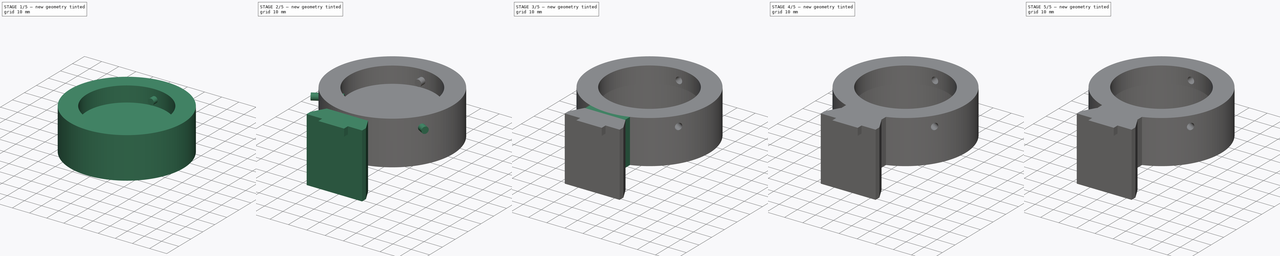
[diagram: build sequence overview — one tinted view per stage of 5, left to right]
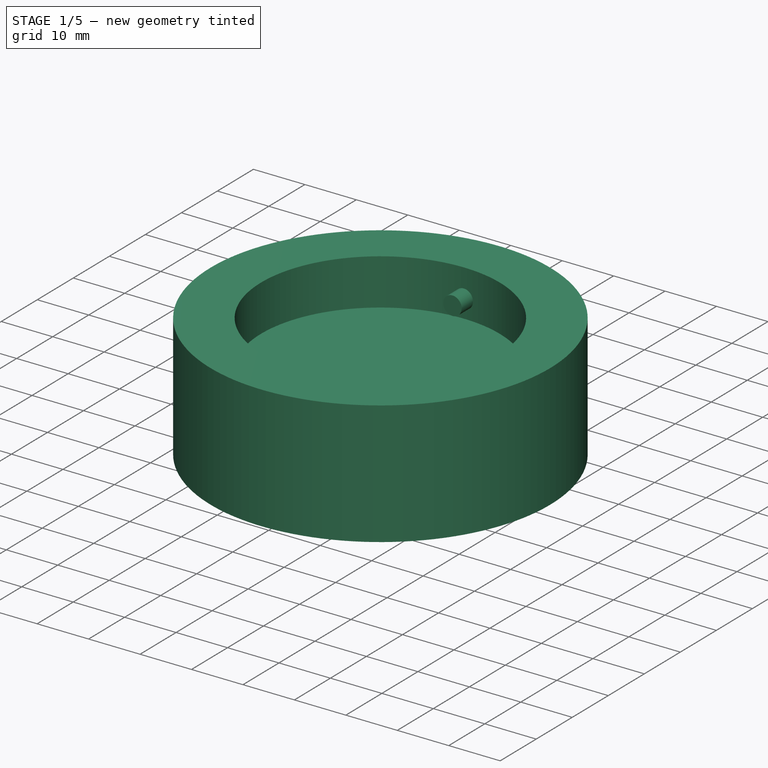
[diagram: stage 1 of 5 — iso view after this stage's code; geometry added in this stage tinted green]
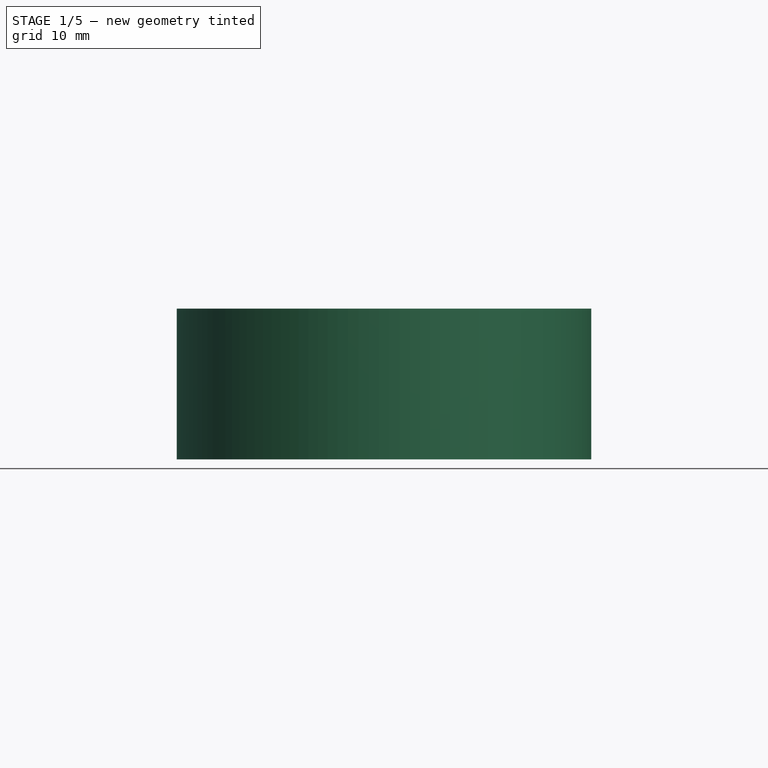
[diagram: stage 1 of 5 — front view after this stage's code; geometry added in this stage tinted green]
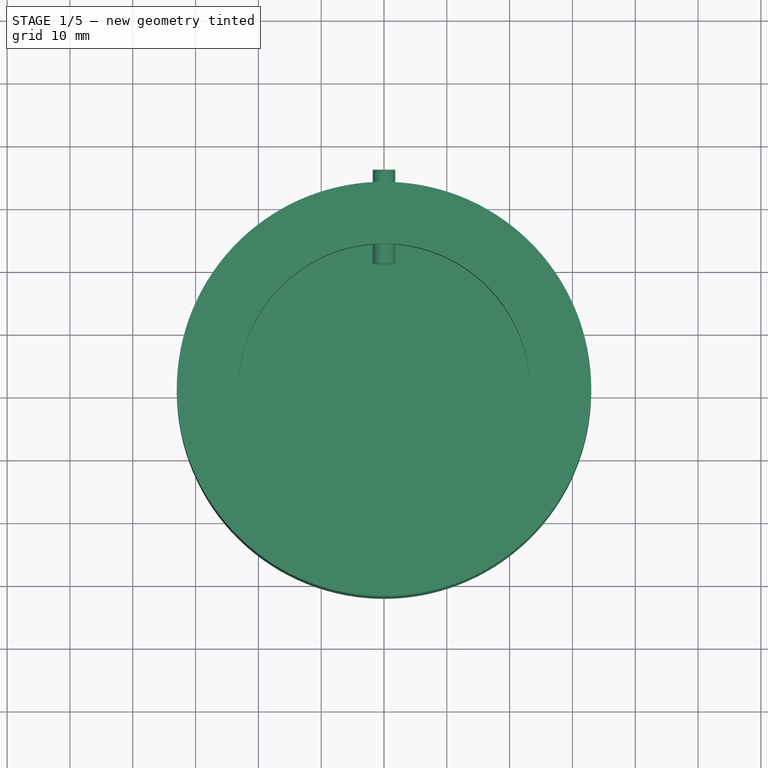
[diagram: stage 1 of 5 — top view after this stage's code; geometry added in this stage tinted green]
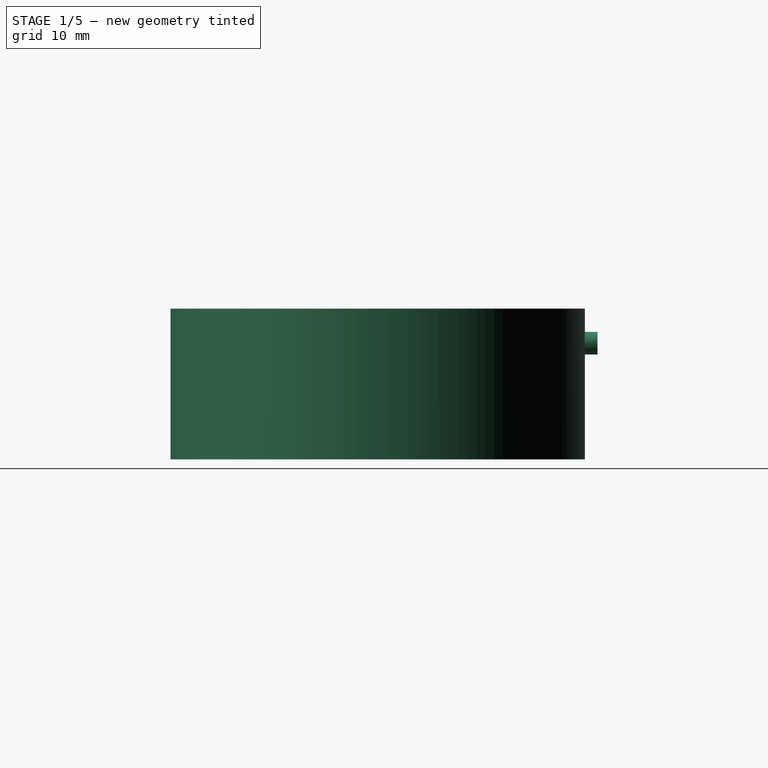
[diagram: stage 1 of 5 — right view after this stage's code; geometry added in this stage tinted green]
FCSTD DOCUMENT  (FreeCAD 0.20R29177 (Git))
Label: laser
License: All rights reserved
LicenseURL: http://en.wikipedia.org/wiki/All_rights_reserved
objects: Part::Cylinder×9, Part::Cut×5, Part::MultiFuse×4, Part::Box×2, Part::Fillet×2, Part::Refine×2, Sketcher::SketchObject×1, Part::Extrusion×1
note: 26 computed .brp shape members not serialized (recipe doc carries the construction recipe); baked Part::Feature solids carry a one-line shape summary decoded from their .brp

FEATURE [Part::Cylinder] Cylinder  label="Válec"
  Angle = 360
  AttacherType = Attacher::AttachEngine3D
  FirstAngle = 0
  Height = 42
  Radius = 23.2
  SecondAngle = 0
FEATURE [Part::Cylinder] Cylinder002  label="Válec002"
  Angle = 360
  AttacherType = Attacher::AttachEngine3D
  FirstAngle = 0
  Height = 24
  Radius = 33
  SecondAngle = 0
FEATURE [Part::Cylinder] Cylinder003  label="Válec003"
  Angle = 360
  AttacherType = Attacher::AttachEngine3D
  FirstAngle = 0
  Height = 15
  Placement = pos=(0,36,18.5) rot=(1,0,0;1.5708rad)
  Radius = 1.8
  SecondAngle = 0
FEATURE [Part::Cut] Cut
  Base = -> Cylinder002
  Placement = pos=(0,1,0) rot=(0,0,1;0rad)
  Tool = -> Cylinder
FEATURE [Part::Cylinder] Cylinder003003009  label="Válec023"
  Angle = 360
  AttacherType = Attacher::AttachEngine3D
  FirstAngle = 0
  Height = 15
  Placement = pos=(0,1,0) rot=(0,0,1;0rad)
  Radius = 28
  SecondAngle = 0
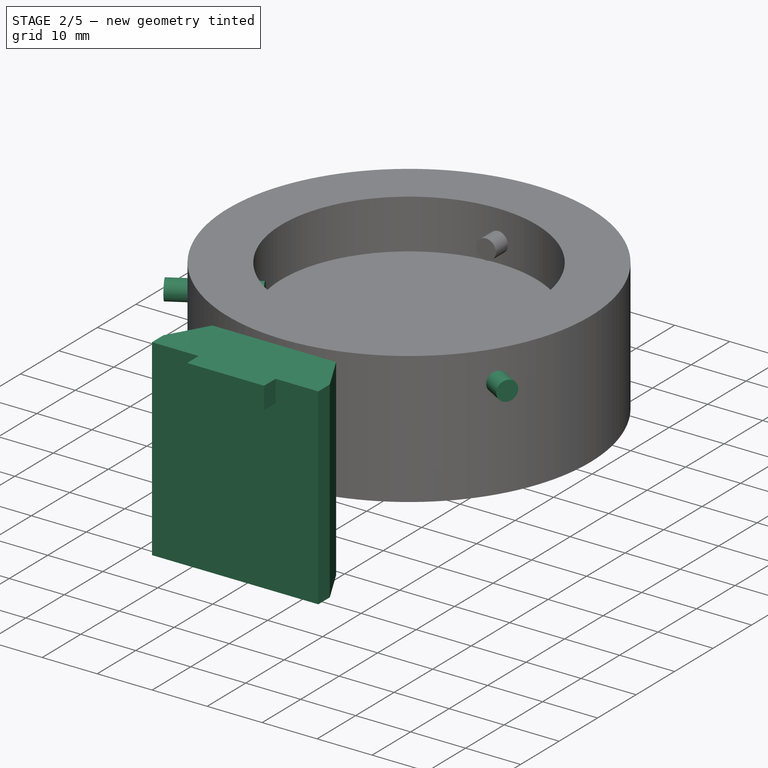
[diagram: stage 2 of 5 — iso view after this stage's code; geometry added in this stage tinted green]
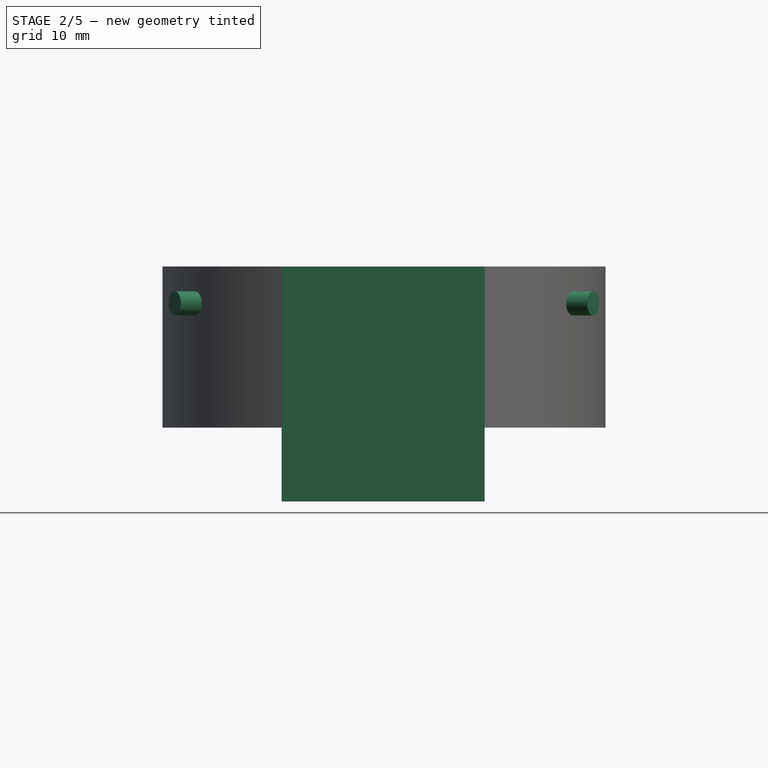
[diagram: stage 2 of 5 — front view after this stage's code; geometry added in this stage tinted green]
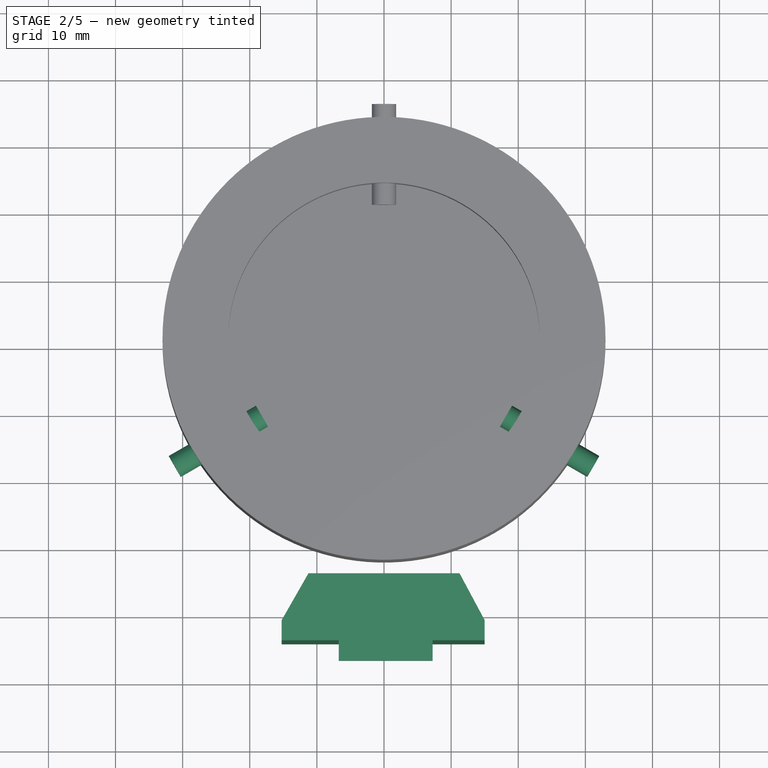
[diagram: stage 2 of 5 — top view after this stage's code; geometry added in this stage tinted green]
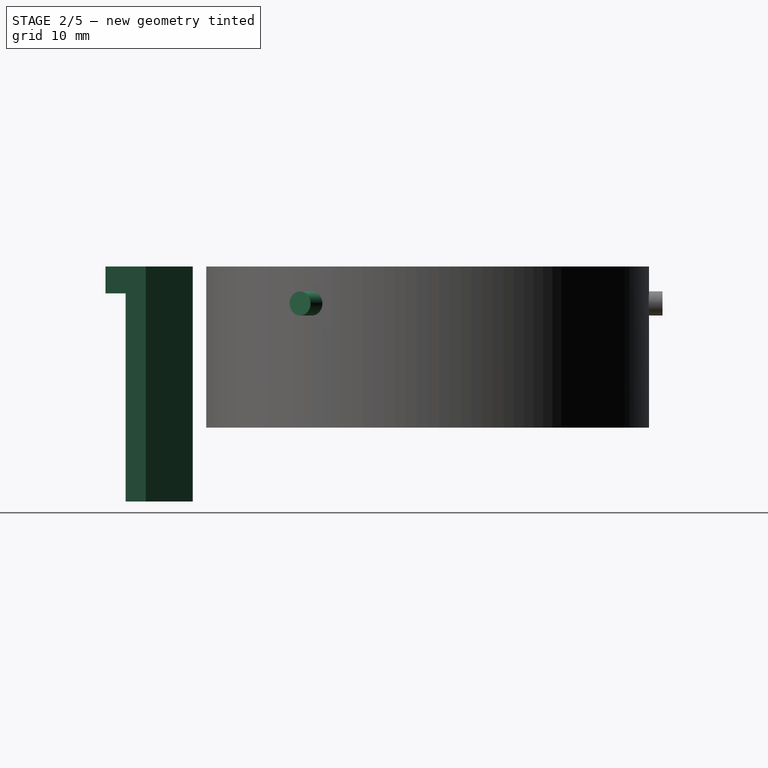
[diagram: stage 2 of 5 — right view after this stage's code; geometry added in this stage tinted green]
FEATURE [Sketcher::SketchObject] Sketch046
  FullyConstrained = false
  MapMode = 5
  Placement = pos=(0,40,0) rot=(0,0.707107,0.707107;3.14159rad)
  sketch-geometry (6):
    g0: LineSegment StartX=0 StartY=0 StartZ=0 EndX=0 EndY=3 EndZ=0
    g1: LineSegment StartX=0 StartY=3 StartZ=0 EndX=-4 EndY=10 EndZ=0
    g2: LineSegment StartX=-4 StartY=10 StartZ=0 EndX=-26.5 EndY=10 EndZ=0
    g3: LineSegment StartX=-26.5 StartY=10 StartZ=0 EndX=-30.25 EndY=3 EndZ=0
    g4: LineSegment StartX=-30.25 StartY=3 StartZ=0 EndX=-30.25 EndY=0 EndZ=0
    g5: LineSegment StartX=-30.25 StartY=0 StartZ=0 EndX=0 EndY=0 EndZ=0
  constraints (11):
    c: Coincident(g-1,g0)
    c: PointOnObject(g0,g-2)
    c: Coincident(g0,g1)
    c: Coincident(g1,g2)
    c: Horizontal(g2)
    c: Coincident(g2,g3)
    c: Coincident(g3,g4)
    c: PointOnObject(g4,g-1)
    c: Vertical(g4)
    c: Coincident(g4,g5)
    c: Coincident(g5,g0)
FEATURE [Part::Box] Box141  label="Krychle130"
  AttacherType = Attacher::AttachEngine3D
  Height = 3
  Length = 14
  Placement = pos=(-6.5,5,-3) rot=(0,0,1;0rad)
  Width = 4
FEATURE [Part::Extrusion] Extrude086
  Base = -> Sketch046
  Dir = (0,1,-2e-16)
  DirMode = 2
  FaceMakerClass = Part::FaceMakerBullseye
  LengthFwd = -35
  LengthRev = 0
  Placement = pos=(-15,0,0) rot=(0,0,1;0rad)
  Solid = true
  Symmetric = false
FEATURE [Part::MultiFuse] Fusion445  label="Dovetal"
  Placement = pos=(-0.25,-44,29) rot=(-1,0,0;1.5708rad)
  Shapes = -> [Extrude086,Box141]
FEATURE [Part::Refine] Cylinder003003007  label="Válec021"
  Placement = pos=(0,0,0) rot=(0,0,1;2.0944rad)
  Source = -> Cylinder003
FEATURE [Part::Refine] Cylinder003003008  label="Válec022"
  Placement = pos=(0,0,0) rot=(0,0,-1;2.0944rad)
  Source = -> Cylinder003
FEATURE [Part::MultiFuse] Fusion447
  Shapes = -> [Cylinder003,Cylinder003003007,Cylinder003003008]
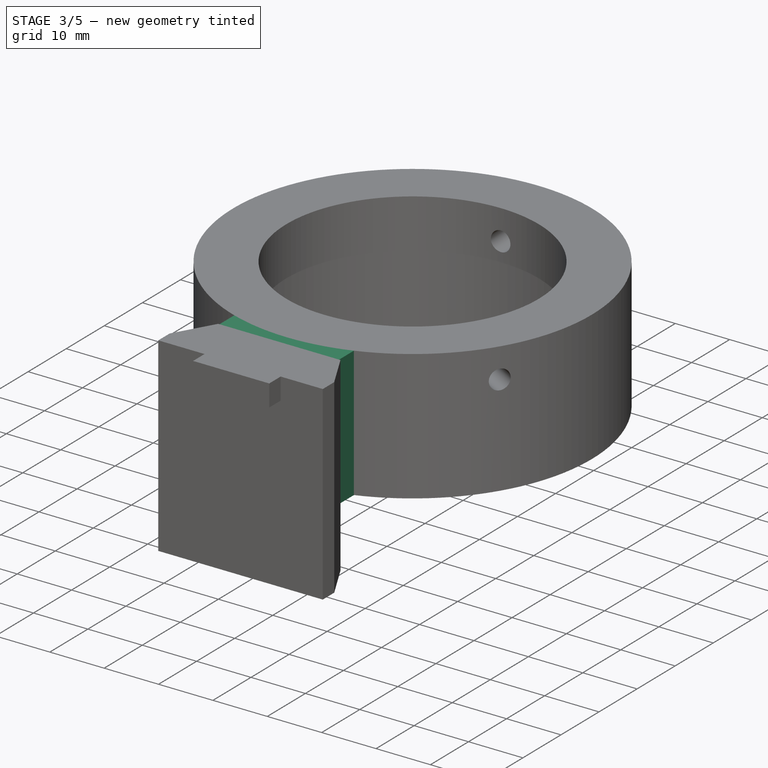
[diagram: stage 3 of 5 — iso view after this stage's code; geometry added in this stage tinted green]
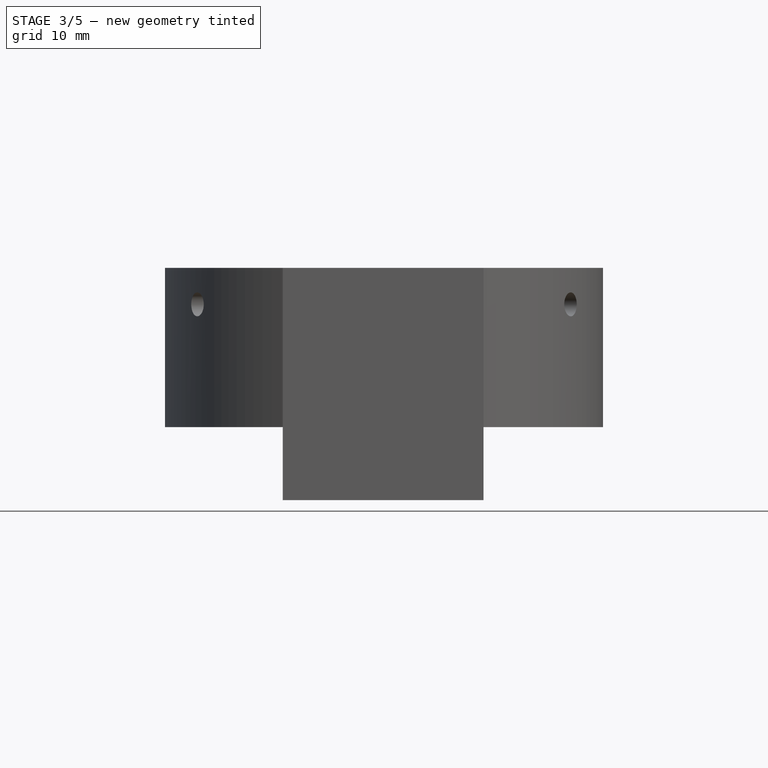
[diagram: stage 3 of 5 — front view after this stage's code; geometry added in this stage tinted green]
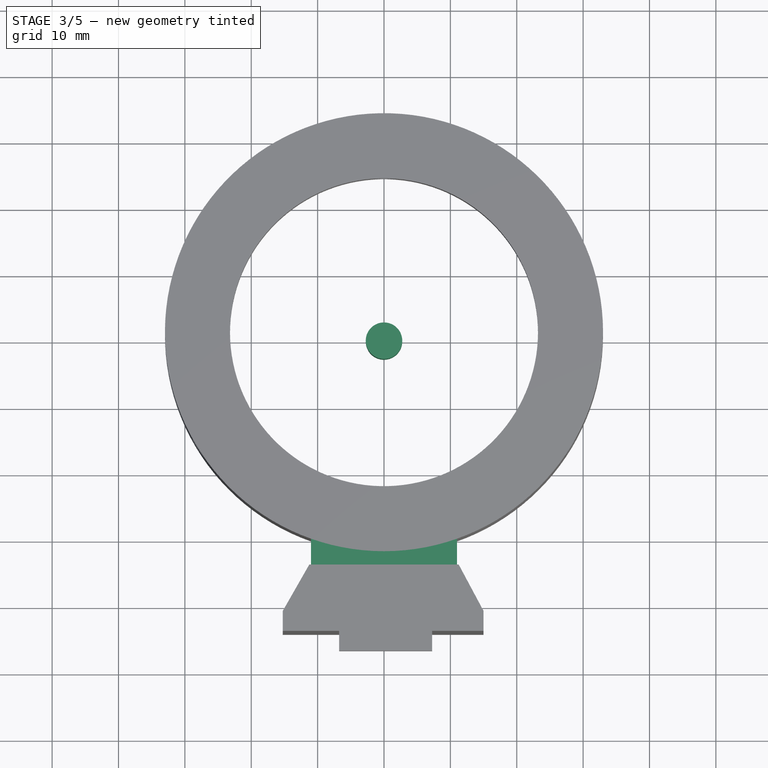
[diagram: stage 3 of 5 — top view after this stage's code; geometry added in this stage tinted green]
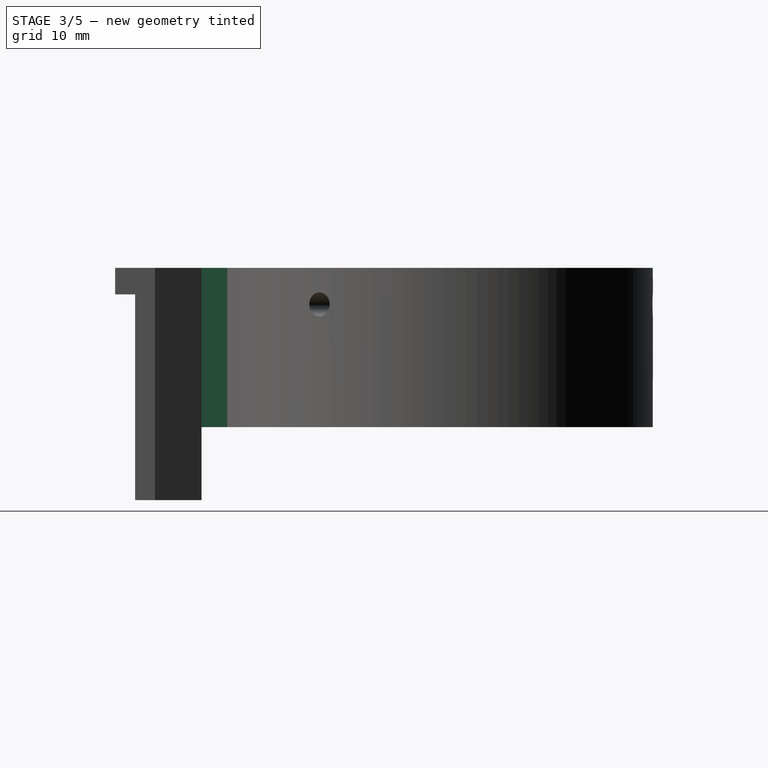
[diagram: stage 3 of 5 — right view after this stage's code; geometry added in this stage tinted green]
FEATURE [Part::Box] Box145  label="Krychle134"
  AttacherType = Attacher::AttachEngine3D
  Height = 24
  Length = 22
  Placement = pos=(-11,-37,0) rot=(0,0,1;0rad)
  Width = 8
FEATURE [Part::Cylinder] Cylinder004008  label="Válec012"
  Angle = 360
  AttacherType = Attacher::AttachEngine3D
  FirstAngle = 0
  Height = 8
  Radius = 2.75
  SecondAngle = 0
FEATURE [Part::MultiFuse] Fusion446
  Shapes = -> [Box145,Fusion445,Cut]
FEATURE [Part::Cut] Cut001007
  Base = -> Fusion446
  Tool = -> Fusion447
FEATURE [Part::Cut] Cut001008
  Base = -> Cut001007
  Tool = -> Cylinder003003009
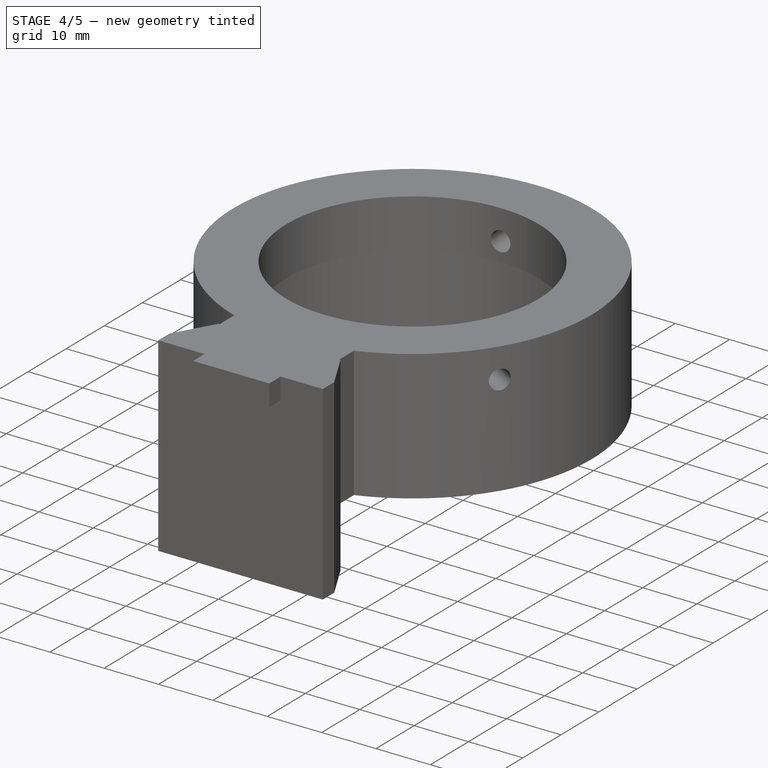
[diagram: stage 4 of 5 — iso view after this stage's code; geometry added in this stage tinted green]
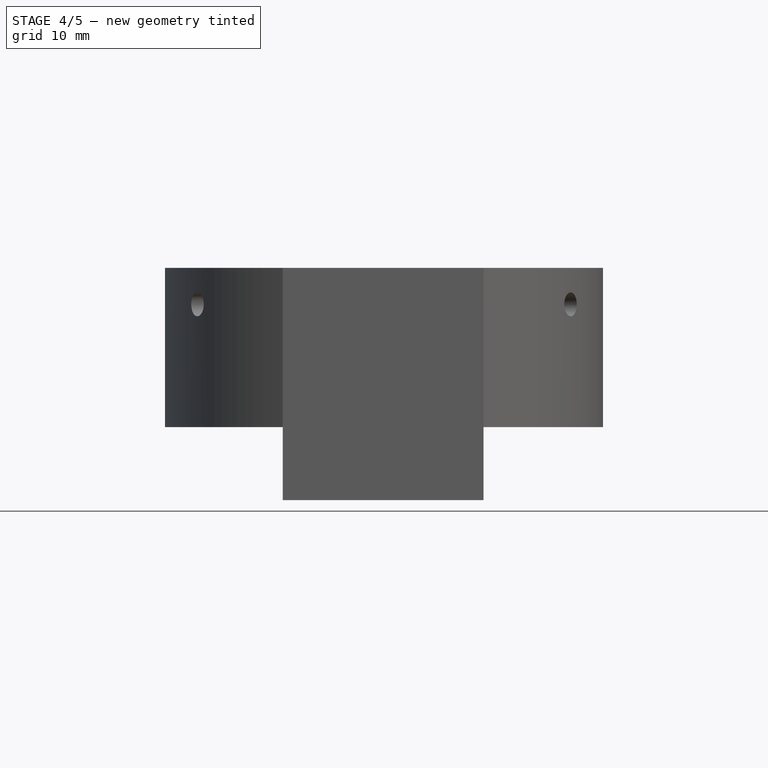
[diagram: stage 4 of 5 — front view after this stage's code; geometry added in this stage tinted green]
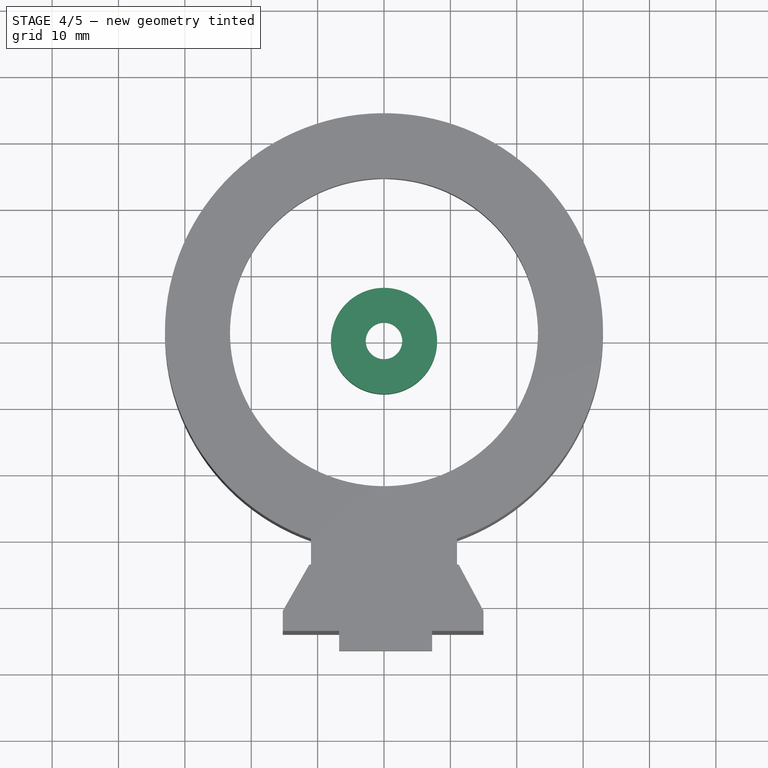
[diagram: stage 4 of 5 — top view after this stage's code; geometry added in this stage tinted green]
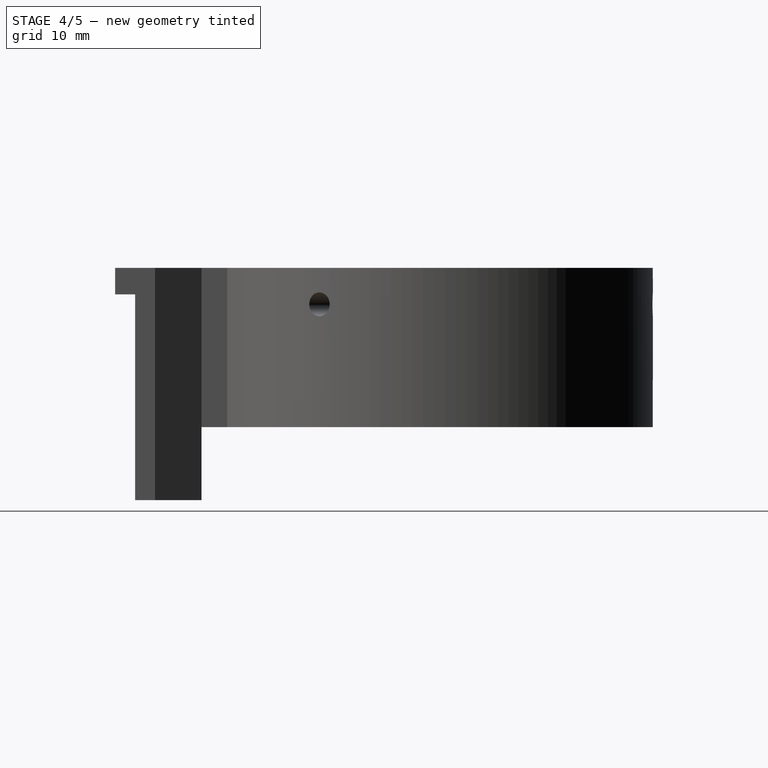
[diagram: stage 4 of 5 — right view after this stage's code; geometry added in this stage tinted green]
FEATURE [Part::Cylinder] Cylinder004009  label="Válec013"
  Angle = 360
  AttacherType = Attacher::AttachEngine3D
  FirstAngle = 0
  Height = 6
  Radius = 8
  SecondAngle = 0
FEATURE [Part::Cylinder] Cylinder004010  label="Válec014"
  Angle = 360
  AttacherType = Attacher::AttachEngine3D
  FirstAngle = 0
  Height = 4
  Radius = 3.5
  SecondAngle = 0
FEATURE [Part::MultiFuse] Fusion003
  Shapes = -> [Cylinder004010,Cylinder004008]
FEATURE [Part::Cut] Cut001006
  Base = -> Cylinder004009
  Tool = -> Fusion003
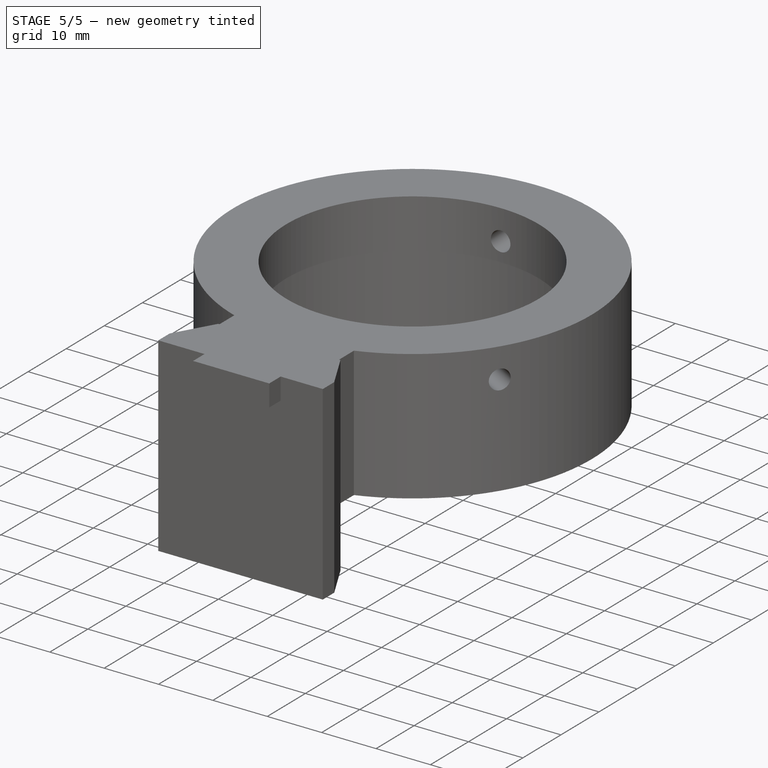
[diagram: stage 5 of 5 — iso view after this stage's code; geometry added in this stage tinted green]
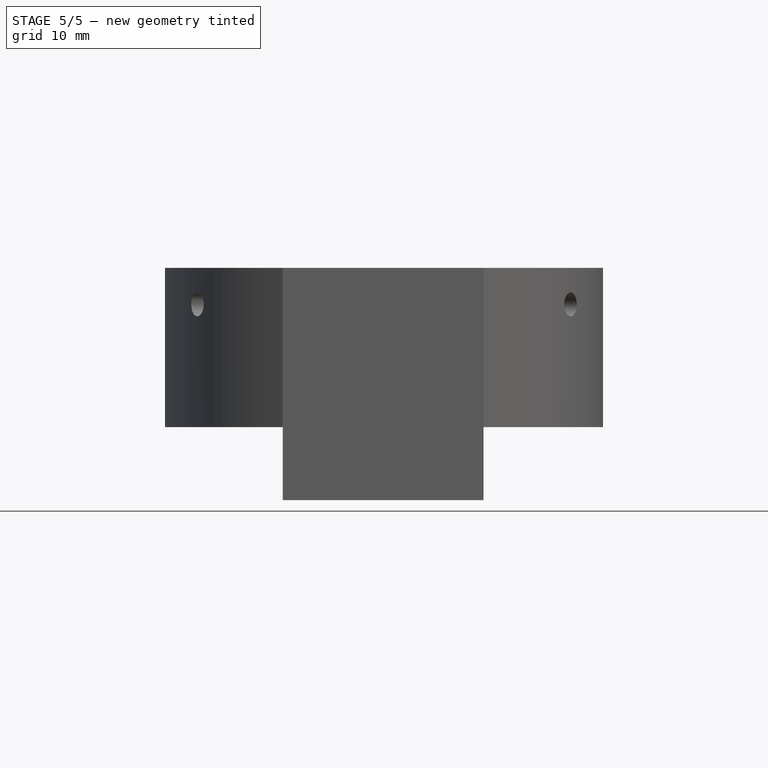
[diagram: stage 5 of 5 — front view after this stage's code; geometry added in this stage tinted green]
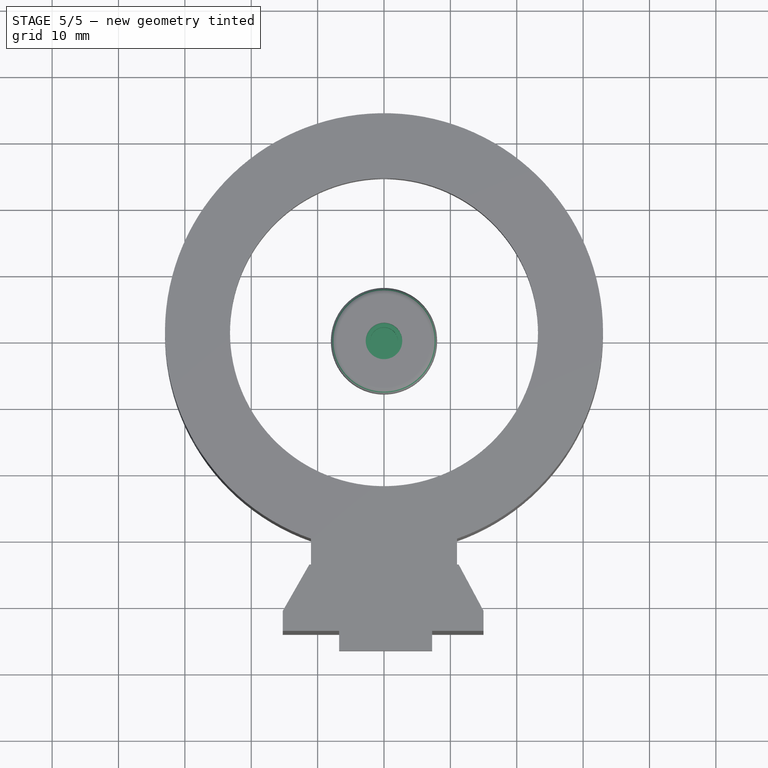
[diagram: stage 5 of 5 — top view after this stage's code; geometry added in this stage tinted green]
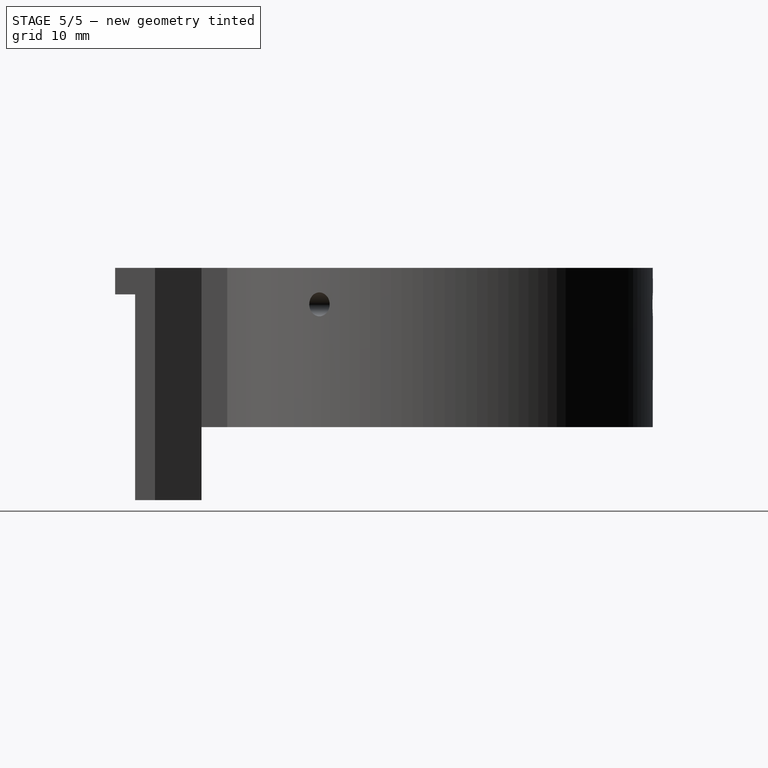
[diagram: stage 5 of 5 — right view after this stage's code; geometry added in this stage tinted green]
FEATURE [Part::Cylinder] Cylinder004006  label="Válec010"
  Angle = 360
  AttacherType = Attacher::AttachEngine3D
  FirstAngle = 0
  Height = 10
  Placement = pos=(0,0,1) rot=(0,0,1;0rad)
  Radius = 2.1
  SecondAngle = 0
FEATURE [Part::Cylinder] Cylinder004005  label="Válec009"
  Angle = 360
  AttacherType = Attacher::AttachEngine3D
  FirstAngle = 0
  Height = 3
  Radius = 3.5
  SecondAngle = 0
FEATURE [Part::Cut] Cut001005
  Base = -> Cylinder004005
  Tool = -> Cylinder004006
FEATURE [Part::Fillet] Fillet001  label="patka"
  Base = -> Cut001005
  Edges = 2 edges r=1: [Edge1,Edge3]
FEATURE [Part::Fillet] Fillet
  Base = -> Cut001006
  Edges = 2 edges r=1: [Edge1,Edge3]
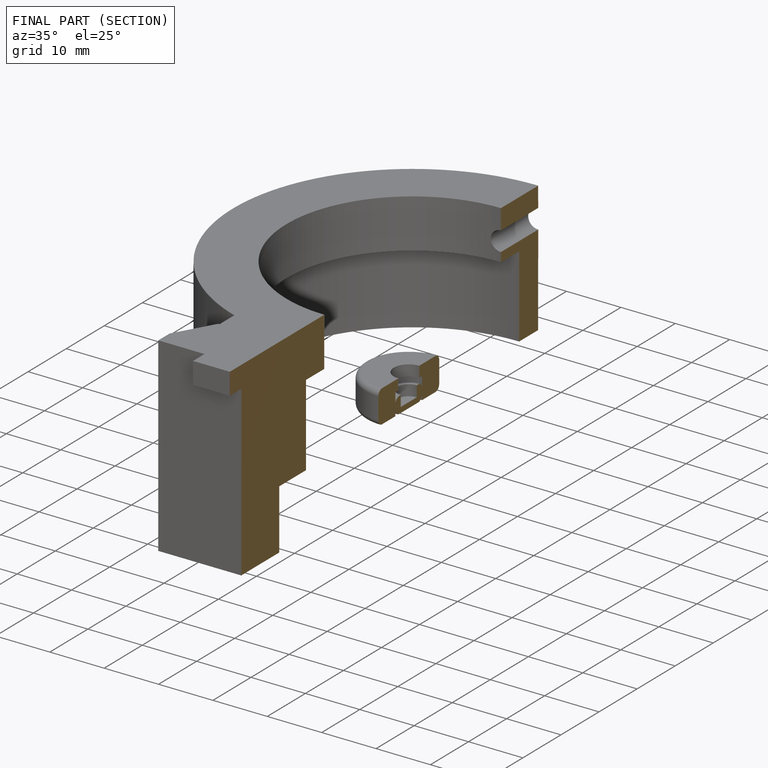
[diagram: finished part — half-section view (interior)]
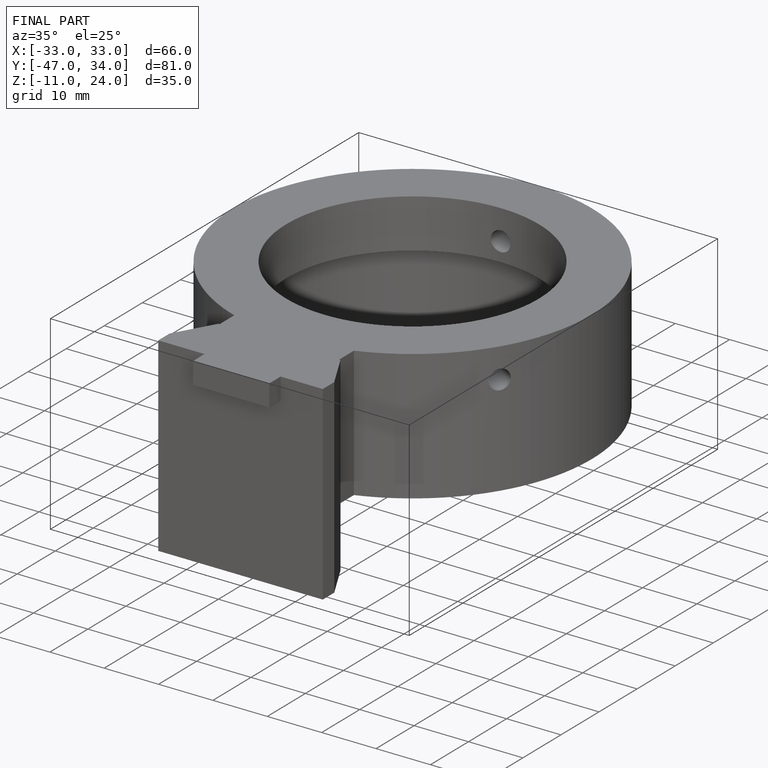
[diagram: finished part — iso view with bounding-box wireframe]
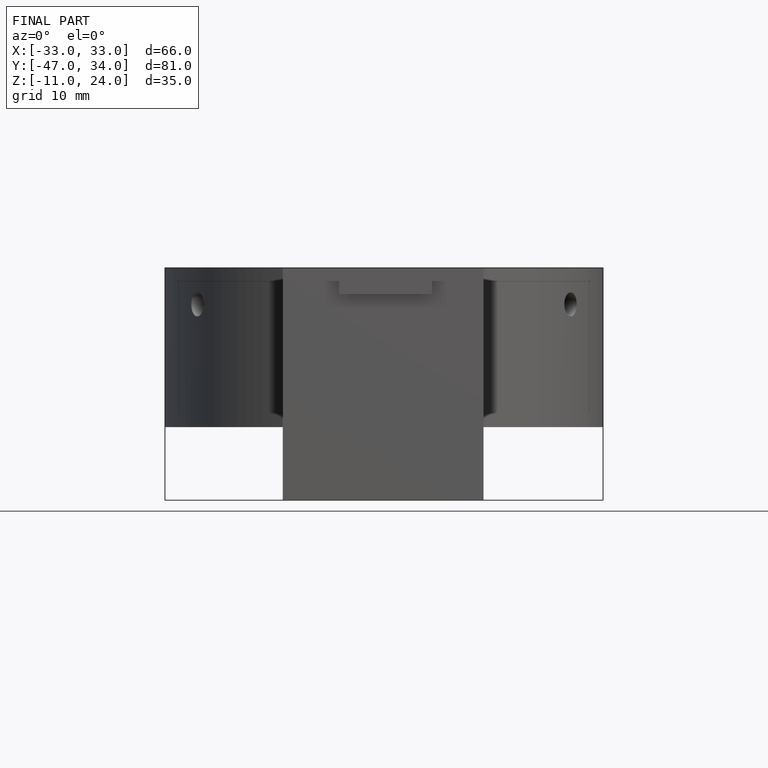
[diagram: finished part — front view with bounding-box wireframe]
